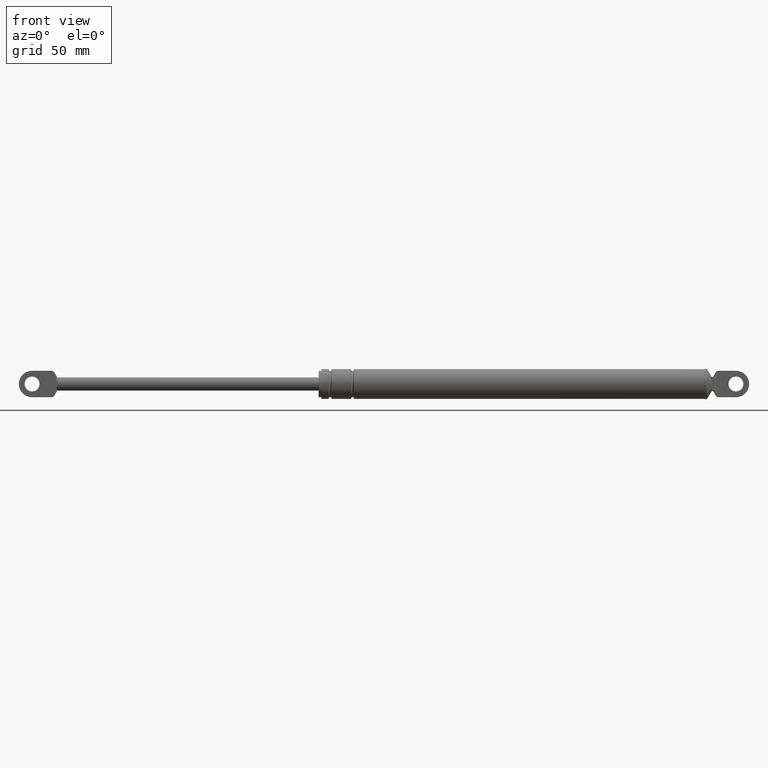
[diagram: clean part render]
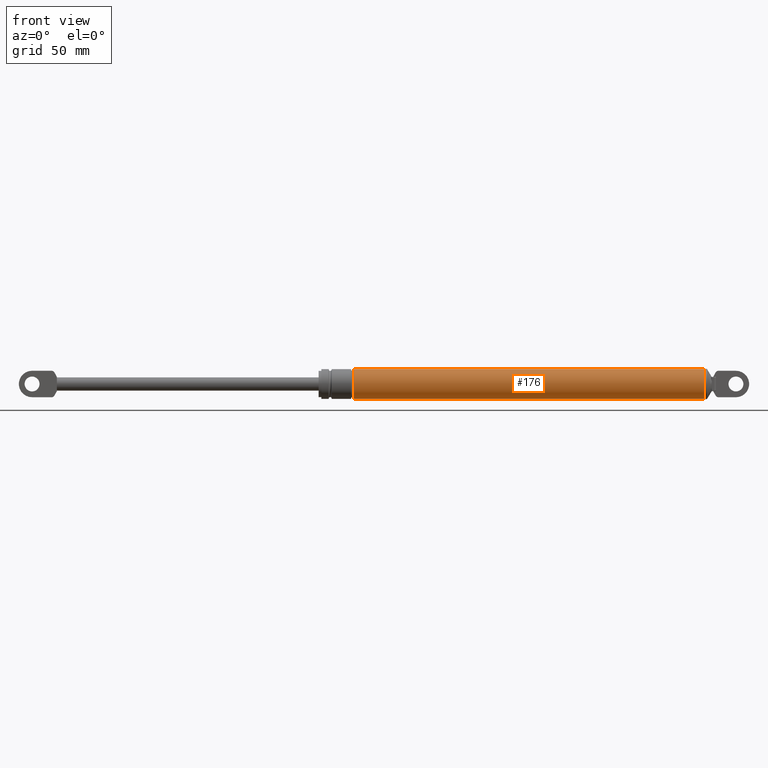
[diagram: same view with one face highlighted and labeled with its STEP entity id]
A machine part, front view. The second image highlights one B-rep face of the part: STEP entity #176.
In plain terms, the highlighted cylindrical surface (edge-blend (fillet) strip) has radius 9 mm, axis along (1, 0, 0).
Its self-contained STEP definition (entity closure, byte-faithful):
#176=ADVANCED_FACE('',(#849),#848,.T.);
#848=CYLINDRICAL_SURFACE('',#1704,9.00000000000E+000);
#849=FACE_OUTER_BOUND('',#1705,.T.);
#1701=CARTESIAN_POINT('',(0.00000000000E+000,0.00000000000E+000,2.11039985953E+002));
#1702=DIRECTION('',(1.00000000000E+000,-0.00000000000E+000,-0.00000000000E+000));
#1703=DIRECTION('',(-0.00000000000E+000,-0.00000000000E+000,-1.00000000000E+000));
#1704=AXIS2_PLACEMENT_3D('',#1701,#1702,#1703);
#1705=EDGE_LOOP('',(#2164,#2165,#2166,#2167));
#2164=ORIENTED_EDGE('',*,*,#2421,.F.);
#2165=ORIENTED_EDGE('',*,*,#2439,.T.);
#2166=ORIENTED_EDGE('',*,*,#2441,.T.);
#2167=ORIENTED_EDGE('',*,*,#2440,.F.);
#2421=EDGE_CURVE('',#3431,#3430,#3438,.T.);
#2439=EDGE_CURVE('',#3431,#3545,#3552,.T.);
#2440=EDGE_CURVE('',#3430,#3544,#3558,.T.);
#2441=EDGE_CURVE('',#3545,#3544,#3564,.T.);
#3430=VERTEX_POINT('',#4558);
#3431=VERTEX_POINT('',#4559);
#3438=CIRCLE('',#4567,9.00000000000E+000);
#3544=VERTEX_POINT('',#4624);
#3545=VERTEX_POINT('',#4625);
#3552=(BOUNDED_CURVE() B_SPLINE_CURVE(1,(#4630,#4631),.UNSPECIFIED.,.F.,.F.) B_SPLINE_CURVE_WITH_KNOTS((2,2),(4.31313348935E-002,9.56868665227E-001),.UNSPECIFIED.) CURVE() GEOMETRIC_REPRESENTATION_ITEM() RATIONAL_B_SPLINE_CURVE((1.00000000000E+000,1.00000000000E+000)) REPRESENTATION_ITEM('') );
#3558=(BOUNDED_CURVE() B_SPLINE_CURVE(1,(#4632,#4633),.UNSPECIFIED.,.F.,.F.) B_SPLINE_CURVE_WITH_KNOTS((2,2),(4.31313349148E-002,9.56868665085E-001),.UNSPECIFIED.) CURVE() GEOMETRIC_REPRESENTATION_ITEM() RATIONAL_B_SPLINE_CURVE((7.50000000000E-001,7.50000000000E-001)) REPRESENTATION_ITEM('') );
#3564=CIRCLE('',#4637,9.00000000000E+000);
#4558=CARTESIAN_POINT('',(1.93216098664E+002,0.00000000000E+000,2.20039985953E+002));
#4559=CARTESIAN_POINT('',(1.93216098664E+002,5.92118946467E-016,2.02039985953E+002));
#4564=CARTESIAN_POINT('',(1.93216098664E+002,0.00000000000E+000,2.11039985953E+002));
#4565=DIRECTION('',(-1.00000000000E+000,0.00000000000E+000,0.00000000000E+000));
#4566=DIRECTION('',(0.00000000000E+000,-1.22460635382E-016,1.00000000000E+000));
#4567=AXIS2_PLACEMENT_3D('',#4564,#4565,#4566);
#4624=CARTESIAN_POINT('',(4.05066098664E+002,0.00000000000E+000,2.20039985953E+002));
#4625=CARTESIAN_POINT('',(4.05066098664E+002,8.88178419700E-016,2.02039985953E+002));
#4630=CARTESIAN_POINT('',(1.93216098659E+002,0.00000000000E+000,2.02039985953E+002));
#4631=CARTESIAN_POINT('',(4.05066098697E+002,0.00000000000E+000,2.02039985953E+002));
#4632=CARTESIAN_POINT('',(1.93216098664E+002,-2.96059473233E-016,2.20039985953E+002));
#4633=CARTESIAN_POINT('',(4.05066098664E+002,-2.96059473233E-016,2.20039985953E+002));
#4634=CARTESIAN_POINT('',(4.05066098664E+002,0.00000000000E+000,2.11039985953E+002));
#4635=DIRECTION('',(-1.00000000000E+000,0.00000000000E+000,0.00000000000E+000));
#4636=DIRECTION('',(0.00000000000E+000,-1.22460635382E-016,1.00000000000E+000));
#4637=AXIS2_PLACEMENT_3D('',#4634,#4635,#4636);